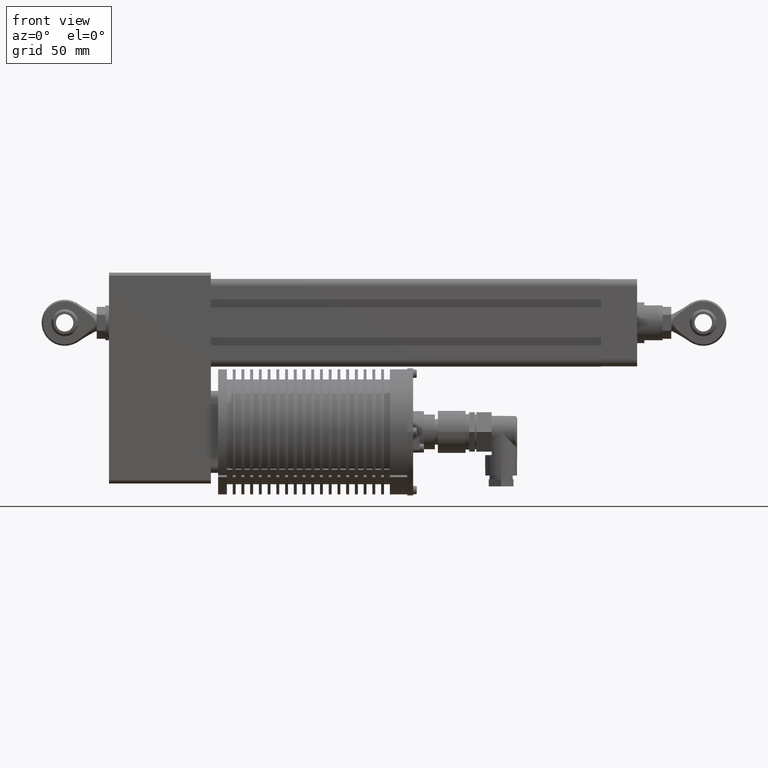
[diagram: clean part render]
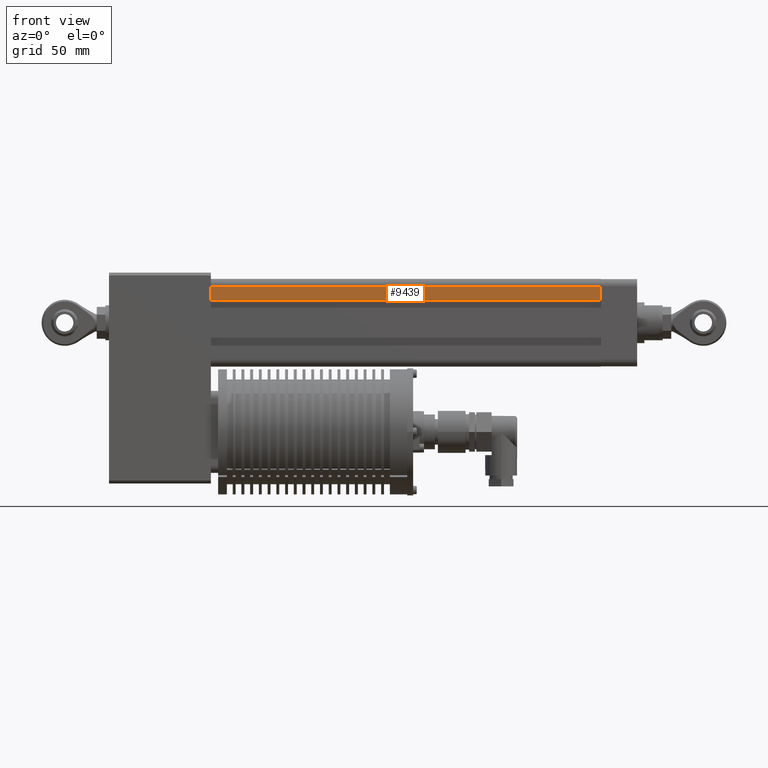
[diagram: same view with one face highlighted and labeled with its STEP entity id]
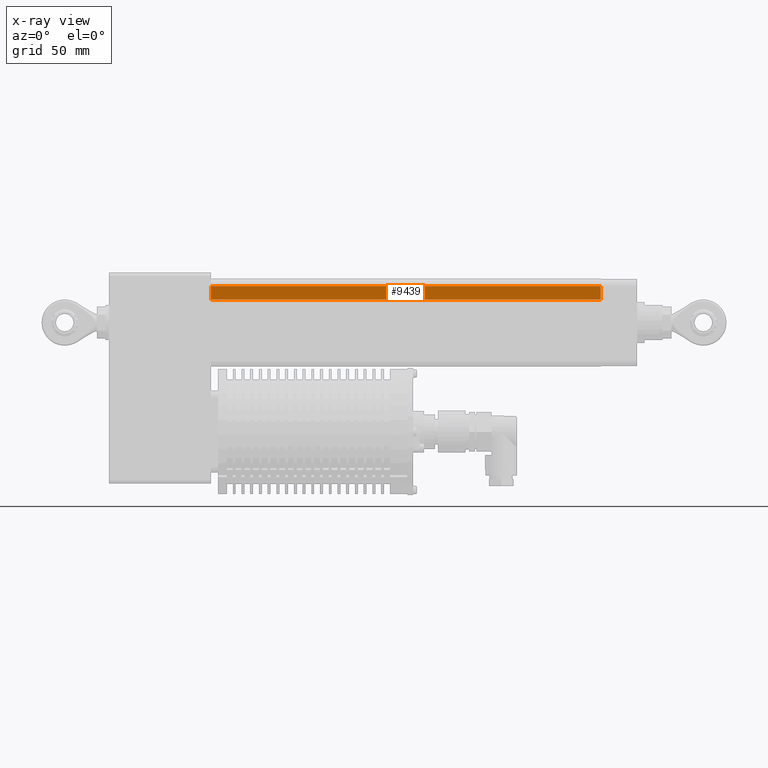
[diagram: x-ray of the same camera — body ghosted, the highlighted face saturated]
A machine part, front view. The second image highlights one B-rep face of the part: STEP entity #9439.
The next image is the same camera in x-ray: the body ghosted, the highlighted face saturated — about 0% of this face is hidden behind the body in this view.
In plain terms, the highlighted planar face has unit normal (0, -1, -0).
Its self-contained STEP definition (entity closure, byte-faithful):
#9381=CARTESIAN_POINT('',(232.0,30.149999999999977,-25.150000000000034));
#9382=VERTEX_POINT('',#9381);
#9390=CARTESIAN_POINT('',(500.0,30.149999999999977,-25.150000000000034));
#9391=VERTEX_POINT('',#9390);
#9392=CARTESIAN_POINT('',(500.0,30.149999999999977,-25.150000000000034));
#9393=DIRECTION('',(-1.0,0.0,0.0));
#9394=VECTOR('',#9393,268.0);
#9395=LINE('',#9392,#9394);
#9396=EDGE_CURVE('',#9391,#9382,#9395,.T.);
#9409=CARTESIAN_POINT('',(500.0,30.149999999999977,-25.150000000000034));
#9410=DIRECTION('',(0.0,1.0,0.0));
#9411=DIRECTION('',(0.0,0.0,1.0));
#9412=AXIS2_PLACEMENT_3D('',#9409,#9410,#9411);
#9413=PLANE('',#9412);
#9414=CARTESIAN_POINT('',(232.0,30.149999999999920,-15.725000000000023));
#9415=VERTEX_POINT('',#9414);
#9416=CARTESIAN_POINT('',(232.0,30.149999999999977,-25.150000000000034));
#9417=DIRECTION('',(0.0,0.0,1.0));
#9418=VECTOR('',#9417,9.425000000000011);
#9419=LINE('',#9416,#9418);
#9420=EDGE_CURVE('',#9382,#9415,#9419,.T.);
#9421=ORIENTED_EDGE('',*,*,#9420,.T.);
#9422=CARTESIAN_POINT('',(500.0,30.149999999999920,-15.725000000000023));
#9423=VERTEX_POINT('',#9422);
#9424=CARTESIAN_POINT('',(500.0,30.149999999999920,-15.725000000000023));
#9425=DIRECTION('',(-1.0,0.0,0.0));
#9426=VECTOR('',#9425,268.0);
#9427=LINE('',#9424,#9426);
#9428=EDGE_CURVE('',#9423,#9415,#9427,.T.);
#9429=ORIENTED_EDGE('',*,*,#9428,.F.);
#9430=CARTESIAN_POINT('',(500.0,30.149999999999977,-25.150000000000034));
#9431=DIRECTION('',(0.0,0.0,1.0));
#9432=VECTOR('',#9431,9.425000000000011);
#9433=LINE('',#9430,#9432);
#9434=EDGE_CURVE('',#9391,#9423,#9433,.T.);
#9435=ORIENTED_EDGE('',*,*,#9434,.F.);
#9436=ORIENTED_EDGE('',*,*,#9396,.T.);
#9437=EDGE_LOOP('',(#9421,#9429,#9435,#9436));
#9438=FACE_OUTER_BOUND('',#9437,.T.);
#9439=ADVANCED_FACE('',(#9438),#9413,.T.);